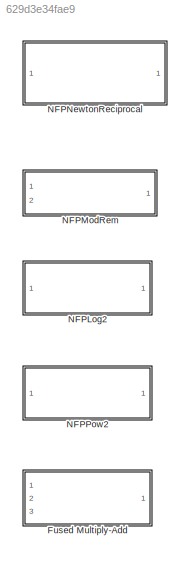
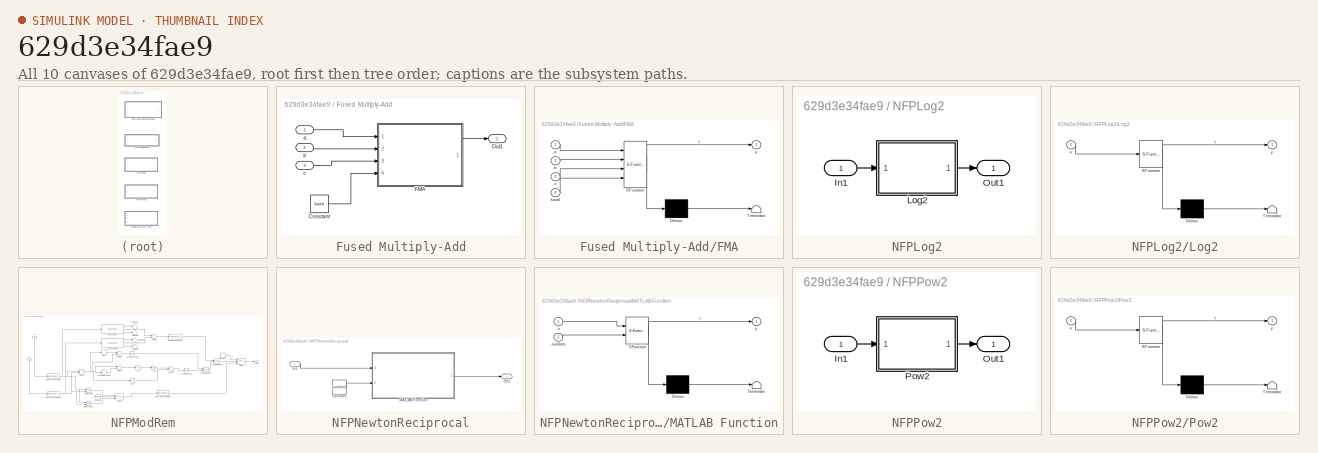
[diagram: thumbnail index - all 10 canvases of the model, root first then tree order]
MODEL slx_629d3e34fae9
KIND library
CONFIG AbsTol = auto
CONFIG EnableMultiTasking = off
CONFIG FixedStep = auto
CONFIG MaxStep = auto
CONFIG MinStep = auto
CONFIG RelTol = 1e-3
CONFIG SampleTimeConstraint = Unconstrained
CONFIG Solver = VariableStepAuto
CONFIG SolverName = VariableStepAuto
CONFIG StartTime = 0.0
CONFIG StopTime = 10.0
BLOCK [SubSystem] Fused Multiply-Add
  Ports = [3, 1]
  RequestExecContextInheritance = off
BLOCK [Constant] Fused Multiply-Add/Constant
  SampleTime = -1
  Value = fused
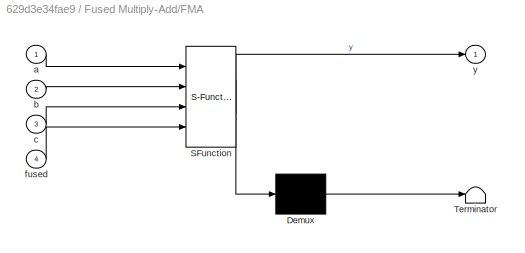
BLOCK [SubSystem] Fused Multiply-Add/FMA
  ErrorFcn = Stateflow.Translate.translate
  PermitHierarchicalResolution = ExplicitOnly
  Ports = [4, 1]
  RequestExecContextInheritance = off
  SFBlockType = MATLAB Function
  TreatAsAtomicUnit = on
BLOCK [Demux] Fused Multiply-Add/FMA/ Demux 
  Outputs = 1
  Ports = [1, 1]
BLOCK [S-Function] Fused Multiply-Add/FMA/ SFunction 
  EnableBusSupport = off
  FunctionName = sf_sfun
  PortCounts = [4 2]
  Ports = [4, 2]
  SFcnIsStateOwnerBlock = off
  SFunctionDeploymentMode = off
  Tag = Stateflow S-Function hdlNFPMathLib 4
BLOCK [Terminator] Fused Multiply-Add/FMA/ Terminator 
BLOCK [Inport] Fused Multiply-Add/FMA/a
  IconDisplay = Port number
BLOCK [Inport] Fused Multiply-Add/FMA/b
  IconDisplay = Port number
  Port = 2
BLOCK [Inport] Fused Multiply-Add/FMA/c
  IconDisplay = Port number
  Port = 3
BLOCK [Inport] Fused Multiply-Add/FMA/fused
  IconDisplay = Port number
  Port = 4
BLOCK [Outport] Fused Multiply-Add/FMA/y
  IconDisplay = Port number
BLOCK [Outport] Fused Multiply-Add/Out1
  IconDisplay = Port number
BLOCK [Inport] Fused Multiply-Add/a
  IconDisplay = Port number
BLOCK [Inport] Fused Multiply-Add/b
  IconDisplay = Port number
  Port = 2
BLOCK [Inport] Fused Multiply-Add/c
  IconDisplay = Port number
  Port = 3
BLOCK [SubSystem] NFPLog2
  Ports = [1, 1]
  RequestExecContextInheritance = off
BLOCK [Inport] NFPLog2/In1
  IconDisplay = Port number
BLOCK [SubSystem] NFPLog2/Log2
  ErrorFcn = Stateflow.Translate.translate
  PermitHierarchicalResolution = ExplicitOnly
  Ports = [1, 1]
  RequestExecContextInheritance = off
  SFBlockType = MATLAB Function
  TreatAsAtomicUnit = on
BLOCK [Demux] NFPLog2/Log2/ Demux 
  Outputs = 1
  Ports = [1, 1]
BLOCK [S-Function] NFPLog2/Log2/ SFunction 
  EnableBusSupport = off
  FunctionName = sf_sfun
  PortCounts = [1 2]
  Ports = [1, 2]
  SFcnIsStateOwnerBlock = off
  SFunctionDeploymentMode = off
  Tag = Stateflow S-Function hdlNFPMathLib 1
BLOCK [Terminator] NFPLog2/Log2/ Terminator 
BLOCK [Inport] NFPLog2/Log2/u
  IconDisplay = Port number
BLOCK [Outport] NFPLog2/Log2/y
  IconDisplay = Port number
BLOCK [Outport] NFPLog2/Out1
  IconDisplay = Port number
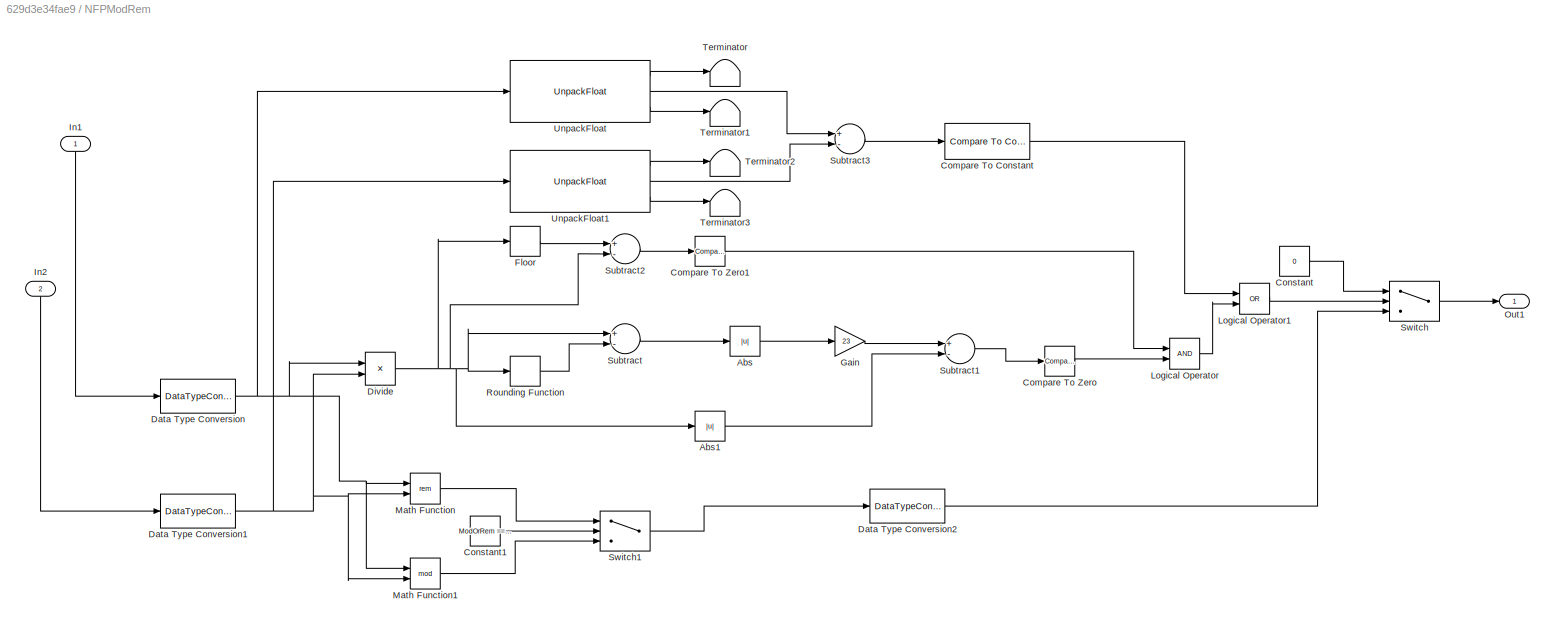
BLOCK [SubSystem] NFPModRem
  Ports = [2, 1]
  RequestExecContextInheritance = off
  VariantControl = Variant1
BLOCK [Abs] NFPModRem/Abs
  SaturateOnIntegerOverflow = off
BLOCK [Abs] NFPModRem/Abs1
  SaturateOnIntegerOverflow = off
BLOCK [Reference] NFPModRem/Compare To Constant  REF=simulink/Logic and Bit
Operations/Compare
To Constant
  Ports = [1, 1]
  SourceBlock = simulink/Logic and Bit\nOperations/Compare\nTo Constant
  SourceProductBaseCode = SL
  SourceProductName = Simulink
  SourceType = Compare To Constant
BLOCK [Reference] NFPModRem/Compare To Zero  REF=simulink/Logic and Bit
Operations/Compare
To Zero
  Ports = [1, 1]
  SourceBlock = simulink/Logic and Bit\nOperations/Compare\nTo Zero
  SourceProductBaseCode = SL
  SourceProductName = Simulink
  SourceType = Compare To Zero
BLOCK [Reference] NFPModRem/Compare To Zero1  REF=simulink/Logic and Bit
Operations/Compare
To Zero
  Ports = [1, 1]
  SourceBlock = simulink/Logic and Bit\nOperations/Compare\nTo Zero
  SourceProductBaseCode = SL
  SourceProductName = Simulink
  SourceType = Compare To Zero
BLOCK [Constant] NFPModRem/Constant
  OutDataTypeStr = single
  SampleTime = -1
  Value = 0
BLOCK [Constant] NFPModRem/Constant1
  SampleTime = -1
  Value = ModOrRem == 1
BLOCK [DataTypeConversion] NFPModRem/Data Type Conversion
  OutDataTypeStr = double
  RndMeth = Floor
  SaturateOnIntegerOverflow = off
BLOCK [DataTypeConversion] NFPModRem/Data Type Conversion1
  OutDataTypeStr = double
  RndMeth = Floor
  SaturateOnIntegerOverflow = off
BLOCK [DataTypeConversion] NFPModRem/Data Type Conversion2
  OutDataTypeStr = single
  RndMeth = Floor
  SaturateOnIntegerOverflow = off
BLOCK [Product] NFPModRem/Divide
  InputSameDT = off
  Inputs = */
  OutDataTypeStr = Inherit: Inherit via internal rule
  Ports = [2, 1]
BLOCK [Rounding] NFPModRem/Floor
BLOCK [Gain] NFPModRem/Gain
  Gain = 23
  OutDataTypeStr = Inherit: Inherit via internal rule
  ParamDataTypeStr = Inherit: Inherit via internal rule
  SaturateOnIntegerOverflow = off
BLOCK [Inport] NFPModRem/In1
  IconDisplay = Port number
BLOCK [Inport] NFPModRem/In2
  IconDisplay = Port number
  Port = 2
BLOCK [Logic] NFPModRem/Logical Operator
  AllPortsSameDT = off
  OutDataTypeStr = boolean
  Ports = [2, 1]
BLOCK [Logic] NFPModRem/Logical Operator1
  AllPortsSameDT = off
  Operator = OR
  OutDataTypeStr = boolean
  Ports = [2, 1]
BLOCK [Math] NFPModRem/Math Function
  Operator = rem
  Ports = [2, 1]
BLOCK [Math] NFPModRem/Math Function1
  Operator = mod
  Ports = [2, 1]
BLOCK [Outport] NFPModRem/Out1
  IconDisplay = Port number
BLOCK [Rounding] NFPModRem/Rounding Function
  Operator = round
BLOCK [Sum] NFPModRem/Subtract
  InputSameDT = off
  Inputs = +-
  OutDataTypeStr = Inherit: Inherit via internal rule
  Ports = [2, 1]
  SaturateOnIntegerOverflow = off
BLOCK [Sum] NFPModRem/Subtract1
  InputSameDT = off
  Inputs = +-
  OutDataTypeStr = Inherit: Inherit via internal rule
  Ports = [2, 1]
  SaturateOnIntegerOverflow = off
BLOCK [Sum] NFPModRem/Subtract2
  InputSameDT = off
  Inputs = +-
  OutDataTypeStr = Inherit: Inherit via internal rule
  Ports = [2, 1]
  SaturateOnIntegerOverflow = off
BLOCK [Sum] NFPModRem/Subtract3
  AccumDataTypeStr = int16
  InputSameDT = off
  Inputs = +-
  OutDataTypeStr = int16
  Ports = [2, 1]
BLOCK [Switch] NFPModRem/Switch
  Criteria = u2 ~= 0
  InputSameDT = off
  SaturateOnIntegerOverflow = off
BLOCK [Switch] NFPModRem/Switch1
  Criteria = u2 ~= 0
  InputSameDT = off
  SaturateOnIntegerOverflow = off
BLOCK [Terminator] NFPModRem/Terminator
BLOCK [Terminator] NFPModRem/Terminator1
BLOCK [Terminator] NFPModRem/Terminator2
BLOCK [Terminator] NFPModRem/Terminator3
BLOCK [Reference] NFPModRem/UnpackFloat  REF=hdlcoderNFPCast/UnpackFloat
  Ports = [1, 3]
  SourceBlock = hdlcoderNFPCast/UnpackFloat
  SourceProductBaseCode = SL
  SourceProductName = Simulink
  SourceType = Unpack Float
BLOCK [Reference] NFPModRem/UnpackFloat1  REF=hdlcoderNFPCast/UnpackFloat
  Ports = [1, 3]
  SourceBlock = hdlcoderNFPCast/UnpackFloat
  SourceProductBaseCode = SL
  SourceProductName = Simulink
  SourceType = Unpack Float
BLOCK [SubSystem] NFPNewtonReciprocal
  Ports = [1, 1]
  RequestExecContextInheritance = off
BLOCK [Constant] NFPNewtonReciprocal/Constant
  OutDataTypeStr = uint8
  SampleTime = -1
  Value = numIters
  VectorParams1D = off
BLOCK [Inport] NFPNewtonReciprocal/In1
  IconDisplay = Port number
BLOCK [SubSystem] NFPNewtonReciprocal/MATLAB Function
  ErrorFcn = Stateflow.Translate.translate
  PermitHierarchicalResolution = ExplicitOnly
  Ports = [2, 1]
  RequestExecContextInheritance = off
  SFBlockType = MATLAB Function
  TreatAsAtomicUnit = on
BLOCK [Demux] NFPNewtonReciprocal/MATLAB Function/ Demux 
  Outputs = 1
  Ports = [1, 1]
BLOCK [S-Function] NFPNewtonReciprocal/MATLAB Function/ SFunction 
  EnableBusSupport = off
  FunctionName = sf_sfun
  PortCounts = [2 2]
  Ports = [2, 2]
  SFcnIsStateOwnerBlock = off
  SFunctionDeploymentMode = off
  Tag = Stateflow S-Function hdlNFPMathLib 2
BLOCK [Terminator] NFPNewtonReciprocal/MATLAB Function/ Terminator 
BLOCK [Inport] NFPNewtonReciprocal/MATLAB Function/numIters
  IconDisplay = Port number
  Port = 2
BLOCK [Inport] NFPNewtonReciprocal/MATLAB Function/u
  IconDisplay = Port number
BLOCK [Outport] NFPNewtonReciprocal/MATLAB Function/y
  IconDisplay = Port number
BLOCK [Outport] NFPNewtonReciprocal/Out1
  IconDisplay = Port number
BLOCK [SubSystem] NFPPow2
  Ports = [1, 1]
  RequestExecContextInheritance = off
BLOCK [Inport] NFPPow2/In1
  IconDisplay = Port number
BLOCK [Outport] NFPPow2/Out1
  IconDisplay = Port number
BLOCK [SubSystem] NFPPow2/Pow2
  ErrorFcn = Stateflow.Translate.translate
  PermitHierarchicalResolution = ExplicitOnly
  Ports = [1, 1]
  RequestExecContextInheritance = off
  SFBlockType = MATLAB Function
  TreatAsAtomicUnit = on
BLOCK [Demux] NFPPow2/Pow2/ Demux 
  Outputs = 1
  Ports = [1, 1]
BLOCK [S-Function] NFPPow2/Pow2/ SFunction 
  EnableBusSupport = off
  FunctionName = sf_sfun
  PortCounts = [1 2]
  Ports = [1, 2]
  SFcnIsStateOwnerBlock = off
  SFunctionDeploymentMode = off
  Tag = Stateflow S-Function hdlNFPMathLib 3
BLOCK [Terminator] NFPPow2/Pow2/ Terminator 
BLOCK [Inport] NFPPow2/Pow2/u
  IconDisplay = Port number
BLOCK [Outport] NFPPow2/Pow2/y
  IconDisplay = Port number
LINE Fused Multiply-Add/Constant:1 -> Fused Multiply-Add/FMA:4
LINE Fused Multiply-Add/FMA:1 -> Fused Multiply-Add/Out1:1
LINE Fused Multiply-Add/a:1 -> Fused Multiply-Add/FMA:1
LINE Fused Multiply-Add/b:1 -> Fused Multiply-Add/FMA:2
LINE Fused Multiply-Add/c:1 -> Fused Multiply-Add/FMA:3
LINE NFPLog2/In1:1 -> NFPLog2/Log2:1
LINE NFPLog2/Log2:1 -> NFPLog2/Out1:1
LINE NFPModRem/Abs1:1 -> NFPModRem/Subtract1:2
LINE NFPModRem/Abs:1 -> NFPModRem/Gain:1
LINE NFPModRem/Compare To Constant:1 -> NFPModRem/Logical Operator1:1
LINE NFPModRem/Compare To Zero1:1 -> NFPModRem/Logical Operator:1
LINE NFPModRem/Compare To Zero:1 -> NFPModRem/Logical Operator:2
LINE NFPModRem/Constant1:1 -> NFPModRem/Switch1:2
LINE NFPModRem/Constant:1 -> NFPModRem/Switch:1
NET NFPModRem/Data Type Conversion1:1 -> NFPModRem/Divide:2, NFPModRem/Math Function1:2, NFPModRem/Math Function:2, NFPModRem/UnpackFloat1:1
LINE NFPModRem/Data Type Conversion2:1 -> NFPModRem/Switch:3
NET NFPModRem/Data Type Conversion:1 -> NFPModRem/Divide:1, NFPModRem/Math Function1:1, NFPModRem/Math Function:1, NFPModRem/UnpackFloat:1
NET NFPModRem/Divide:1 -> NFPModRem/Abs1:1, NFPModRem/Floor:1, NFPModRem/Rounding Function:1, NFPModRem/Subtract2:2, NFPModRem/Subtract:1
LINE NFPModRem/Floor:1 -> NFPModRem/Subtract2:1
LINE NFPModRem/Gain:1 -> NFPModRem/Subtract1:1
LINE NFPModRem/In1:1 -> NFPModRem/Data Type Conversion:1
LINE NFPModRem/In2:1 -> NFPModRem/Data Type Conversion1:1
LINE NFPModRem/Logical Operator1:1 -> NFPModRem/Switch:2
LINE NFPModRem/Logical Operator:1 -> NFPModRem/Logical Operator1:2
LINE NFPModRem/Math Function1:1 -> NFPModRem/Switch1:3
LINE NFPModRem/Math Function:1 -> NFPModRem/Switch1:1
LINE NFPModRem/Rounding Function:1 -> NFPModRem/Subtract:2
LINE NFPModRem/Subtract1:1 -> NFPModRem/Compare To Zero:1
LINE NFPModRem/Subtract2:1 -> NFPModRem/Compare To Zero1:1
LINE NFPModRem/Subtract3:1 -> NFPModRem/Compare To Constant:1
LINE NFPModRem/Subtract:1 -> NFPModRem/Abs:1
LINE NFPModRem/Switch1:1 -> NFPModRem/Data Type Conversion2:1
LINE NFPModRem/Switch:1 -> NFPModRem/Out1:1
LINE NFPModRem/UnpackFloat1:1 -> NFPModRem/Terminator2:1
LINE NFPModRem/UnpackFloat1:2 -> NFPModRem/Subtract3:2
LINE NFPModRem/UnpackFloat1:3 -> NFPModRem/Terminator3:1
LINE NFPModRem/UnpackFloat:1 -> NFPModRem/Terminator:1
LINE NFPModRem/UnpackFloat:2 -> NFPModRem/Subtract3:1
LINE NFPModRem/UnpackFloat:3 -> NFPModRem/Terminator1:1
LINE NFPNewtonReciprocal/Constant:1 -> NFPNewtonReciprocal/MATLAB Function:2
LINE NFPNewtonReciprocal/In1:1 -> NFPNewtonReciprocal/MATLAB Function:1
LINE NFPNewtonReciprocal/MATLAB Function:1 -> NFPNewtonReciprocal/Out1:1
LINE NFPPow2/In1:1 -> NFPPow2/Pow2:1
LINE NFPPow2/Pow2:1 -> NFPPow2/Out1:1
note: NET lines group one-source signal fan-out (src -> all destinations, sorted); 1:1 wires keep LINE
CHART NFPLog2/Log2 states=1 transitions=1
  STATE_LABEL 'eML_blk_kernel()'
  STATE_LABEL "SCRIPT:\nfunction y = LOG2(u)\n%#codegen\n    u = double(u);\n    y = zeros(size(u), 'single');\n    \n    for ii = 1:1:numel(u)\n        if (u(ii) < 0)\n            y(ii) = single(NaN);\n        else\n            y(ii) = single(log(u(ii))/log(2));\n        end\n    end\nend"
CHART NFPNewtonReciprocal/MATLAB Function states=1 transitions=1
  STATE_LABEL 'eML_blk_kernel()'
  STATE_LABEL "SCRIPT:\nfunction y = eml_al_nr_reciprocal_v2(u,numIters)\n% Algorithm Lowering Library Function for Newto-Raphson reciprocal\n\n% <copyright redacted>\n%#codegen\n\n% y = 1/u\n\ncoder.allowpcode('plain');\n% \n% if ~isempty(coder.target)\n%     eml_prefer_const(u);\n%     eml_prefer_const(numIters);\n% end\n\n%Compute input argument dimensions\nsz = size(u);\nif isfi(u)\n    outLen = numberofelements(...<+3608ch>"
CHART NFPPow2/Pow2 states=1 transitions=1
  STATE_LABEL 'eML_blk_kernel()'
  STATE_LABEL "SCRIPT:\nfunction y = POW2(u)\n%#codegen\n    u = single(u);\n    y = zeros(size(u), 'single');\n    \n    for ii = 1:1:numel(u)\n        y(ii) = pow2(u(ii));\n    end\nend"
CHART Fused Multiply-Add/FMA states=1 transitions=1
  STATE_LABEL 'eML_blk_kernel()'
  STATE_LABEL 'SCRIPT:\nfunction y = FMA(a, b, c, fused)\n%#codegen\n    a = single(a);\n    b = single(b);\n    c = single(c);\n    \n    a_cf = CustomFloat(a);\n    b_cf = CustomFloat(b);\n    c_cf = CustomFloat(c);\n    \n    if (fused)\n        y_cf = fma(a_cf, b_cf, c_cf);\n    else\n        y_cf = (a_cf .* b_cf) + c_cf;\n    end\n    \n    y = single(y_cf);\nend'
